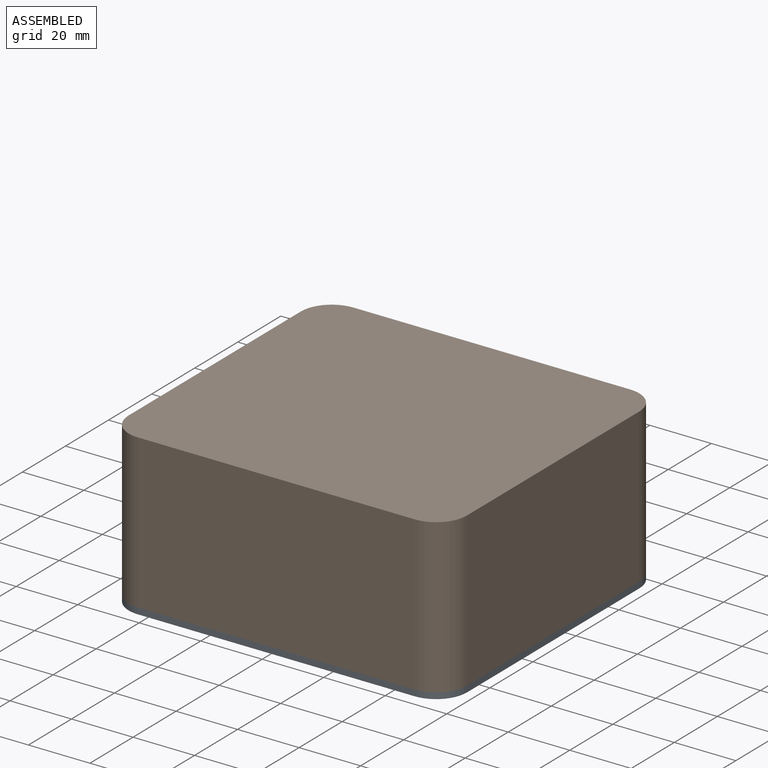
[diagram: assembled view]
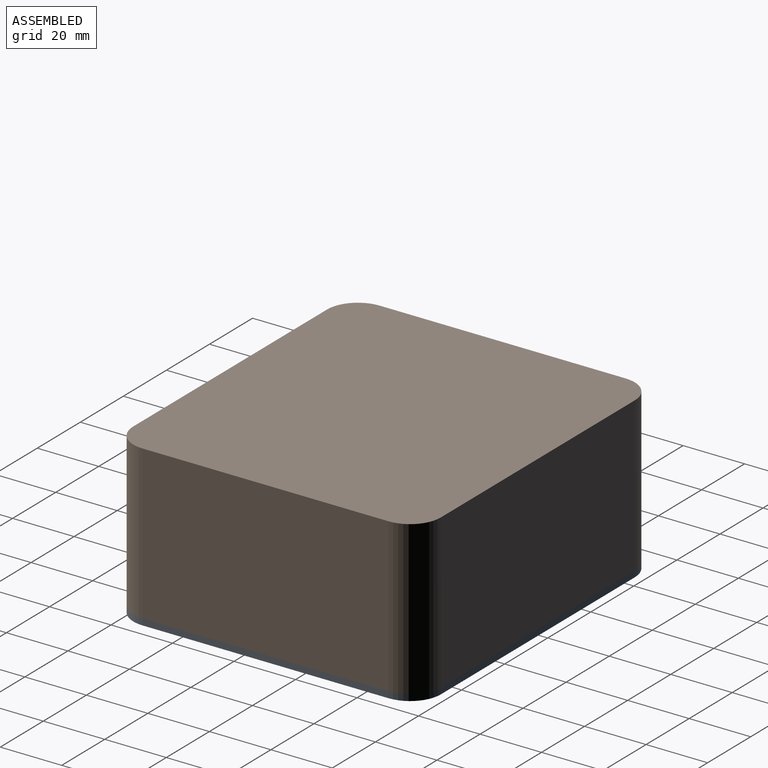
[diagram: assembled view, second angle]
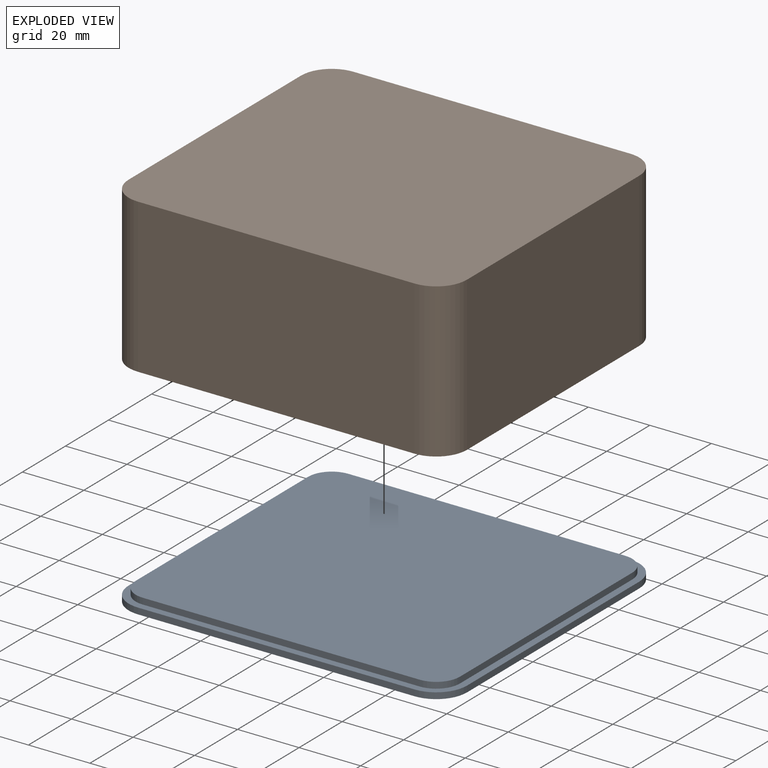
[diagram: exploded view]
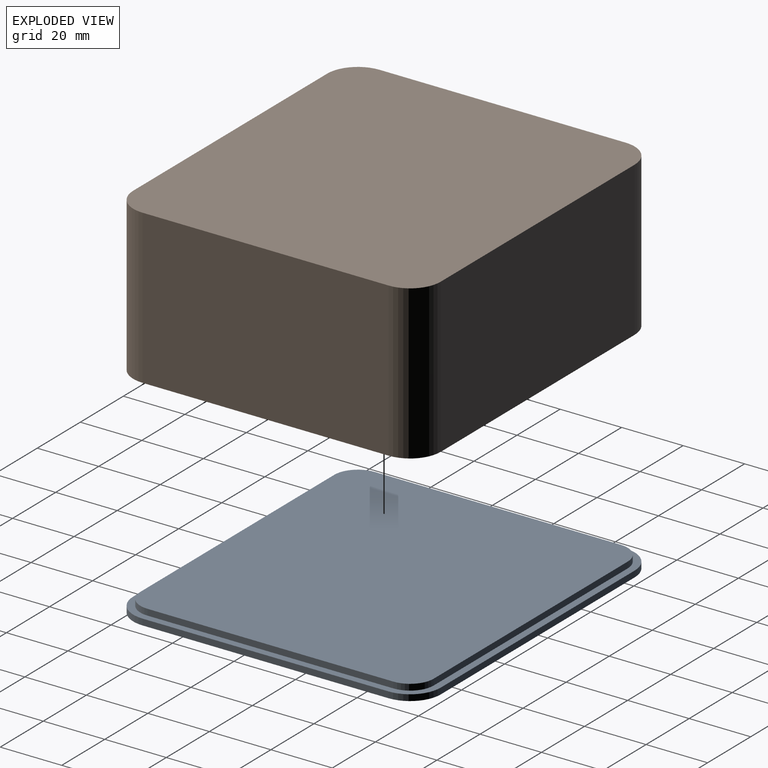
[diagram: exploded view, second angle]
ASSEMBLY  parts=2 mates=2
PART A: 19 faces, bbox 110x100x4 mm
  f0: plane 90x2mm, normal (0,1,0), area 180mm2, adj f1,f7,f8,f9
  f1: cylinder r=10mm len=10mm, axis (0,0,1), area 31.4mm2, adj f0,f2,f8,f9
  f2: plane 80x2mm, normal (-1,0,0), area 160mm2, adj f1,f3,f8,f9
  f3: cylinder r=10mm len=10mm, axis (0,0,1), area 31.4mm2, adj f2,f4,f8,f9
  f4: plane 90x2mm, normal (0,-1,0), area 180mm2, adj f3,f5,f8,f9
  f5: cylinder r=10mm len=10mm, axis (0,0,1), area 31.4mm2, adj f4,f6,f8,f9
  f6: plane 80x2mm, normal (1,0,0), area 160mm2, adj f5,f7,f8,f9
  f7: cylinder r=10mm len=10mm, axis (0,0,1), area 31.4mm2, adj f0,f6,f8,f9
  f8: plane 110x100mm, normal (0,0,-1), area 10914.2mm2, adj f0,f1,f2,f3,f4,f5,f6,f7
  f9: plane 110x100mm, normal (0,0,1), area 909.9mm2, adj f0,f1,f2,f3,f4,f5,f6,f7
  f10: plane 90x2mm, normal (0,1,0), area 180mm2, adj f9,f11,f17,f18
  f11: cylinder r=7.7mm len=7.7mm, axis (0,0,-1), area 24.2mm2, adj f9,f10,f12,f18
  f12: plane 80x2mm, normal (-1,0,0), area 160mm2, adj f9,f11,f13,f18
  f13: cylinder r=7.7mm len=7.7mm, axis (0,0,-1), area 24.2mm2, adj f9,f12,f14,f18
  f14: plane 90x2mm, normal (0,-1,0), area 180mm2, adj f9,f13,f15,f18
  f15: cylinder r=7.7mm len=7.7mm, axis (0,0,-1), area 24.2mm2, adj f9,f14,f16,f18
  f16: plane 80x2mm, normal (1,0,0), area 160mm2, adj f9,f15,f17,f18
  f17: cylinder r=7.7mm len=7.7mm, axis (0,0,-1), area 24.2mm2, adj f9,f10,f16,f18
  f18: plane 105.4x95.4mm, normal (0,0,1), area 10004.3mm2, adj f10,f11,f12,f13,f14,f15,f16,f17
PART B: 35 faces, bbox 110x100x50 mm
  f0: cylinder r=8mm len=8mm, axis (0,0,-1), area 25.1mm2, adj f2,f13,f14,f29
  f1: cylinder r=8mm len=8mm, axis (0,0,-1), area 25.1mm2, adj f2,f16,f17,f19
  f2: plane 110x100mm, normal (0,0,1), area 793.1mm2, adj f0,f1,f3,f4,f5,f6,f7,f8
  f3: cylinder r=10mm len=50mm, axis (0,0,-1), area 785.4mm2, adj f2,f4,f10,f11
  f4: plane 90x50mm, normal (0,-1,0), area 4500mm2, adj f2,f3,f5,f11
  f5: cylinder r=10mm len=50mm, axis (0,0,-1), area 785.4mm2, adj f2,f4,f6,f11
  f6: plane 80x50mm, normal (1,0,0), area 4000mm2, adj f2,f5,f7,f11
  f7: cylinder r=10mm len=50mm, axis (0,0,-1), area 785.4mm2, adj f2,f6,f8,f11
  f8: plane 90x50mm, normal (0,1,0), area 4500mm2, adj f2,f7,f9,f11
  f9: cylinder r=10mm len=50mm, axis (0,0,-1), area 785.4mm2, adj f2,f8,f10,f11
  f10: plane 80x50mm, normal (-1,0,0), area 4000mm2, adj f2,f3,f9,f11
  f11: plane 110x100mm, normal (0,0,-1), area 10914.2mm2, adj f3,f4,f5,f6,f7,f8,f9,f10
  f12: cylinder r=8mm len=8mm, axis (0,0,-1), area 25.1mm2, adj f2,f13,f17,f27
  f13: plane 90x48mm, normal (0,1,0), area 3871.8mm2, adj f0,f2,f12,f18,f27,f29,f31,f34
  f14: plane 80x48mm, normal (-1,0,0), area 3391.8mm2, adj f0,f2,f15,f18,f23,f26,f29,f32
  f15: cylinder r=8mm len=8mm, axis (0,0,-1), area 25.1mm2, adj f2,f14,f16,f23
  f16: plane 90x48mm, normal (0,-1,0), area 3871.8mm2, adj f1,f2,f15,f18,f19,f21,f23,f25
  f17: plane 80x48mm, normal (1,0,0), area 3391.8mm2, adj f1,f2,f12,f18,f19,f22,f27,f33
  f18: plane 106x96mm, normal (0,0,1), area 9777.8mm2, adj f13,f14,f16,f17,f20,f21,f22,f24
  f19: plane 12.87x12.87mm, normal (0,0,1), area 85.8mm2, adj f1,f16,f17,f20,f21,f22
  f20: cylinder r=5mm len=46mm, axis (0,0,-1), area 487.7mm2, adj f18,f19,f21,f22
  f21: cylinder r=3mm len=46mm, axis (0,0,-1), area 254.7mm2, adj f16,f18,f19,f20
  f22: cylinder r=3mm len=46mm, axis (0,0,-1), area 254.7mm2, adj f17,f18,f19,f20
  f23: plane 12.87x12.87mm, normal (0,0,1), area 85.8mm2, adj f14,f15,f16,f24,f25,f26
  f24: cylinder r=5mm len=46mm, axis (0,0,-1), area 487.7mm2, adj f18,f23,f25,f26
  f25: cylinder r=3mm len=46mm, axis (0,0,-1), area 254.7mm2, adj f16,f18,f23,f24
  f26: cylinder r=3mm len=46mm, axis (0,0,-1), area 254.7mm2, adj f14,f18,f23,f24
  f27: plane 12.87x12.87mm, normal (0,0,1), area 85.8mm2, adj f12,f13,f17,f28,f33,f34
  f28: cylinder r=5mm len=46mm, axis (0,0,-1), area 487.7mm2, adj f18,f27,f33,f34
  f29: plane 12.87x12.87mm, normal (0,0,1), area 85.8mm2, adj f0,f13,f14,f30,f31,f32
  f30: cylinder r=5mm len=46mm, axis (0,0,-1), area 487.7mm2, adj f18,f29,f31,f32
  f31: cylinder r=3mm len=46mm, axis (0,0,-1), area 254.7mm2, adj f13,f18,f29,f30
  f32: cylinder r=3mm len=46mm, axis (0,0,-1), area 254.7mm2, adj f14,f18,f29,f30
  f33: cylinder r=3mm len=46mm, axis (0,0,-1), area 254.7mm2, adj f17,f18,f27,f28
  f34: cylinder r=3mm len=46mm, axis (0,0,-1), area 254.7mm2, adj f13,f18,f27,f28
PLACE A t=(89.6,-40,0)mm
PLACE B rot(axis=(1,0,0),180deg) t=(89.6,60,50)mm
MATE planar B.f2 <-> A.f9  axis (0,0,-1) through (144.6,10,0)mm
MATE planar A.f6 <-> B.f6  axis (1,0,0) through (199.6,10,-1)mm
